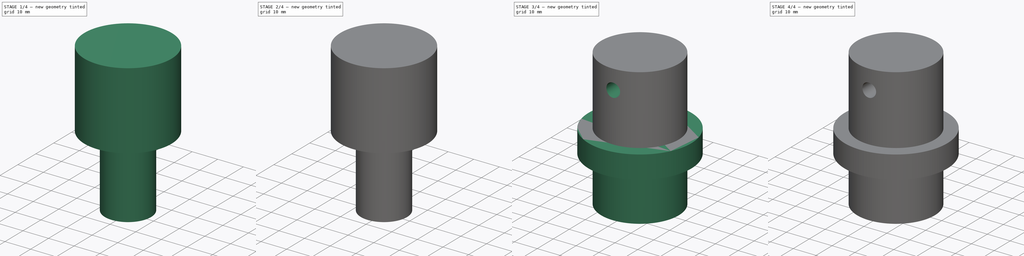
[diagram: build sequence overview — one tinted view per stage of 4, left to right]
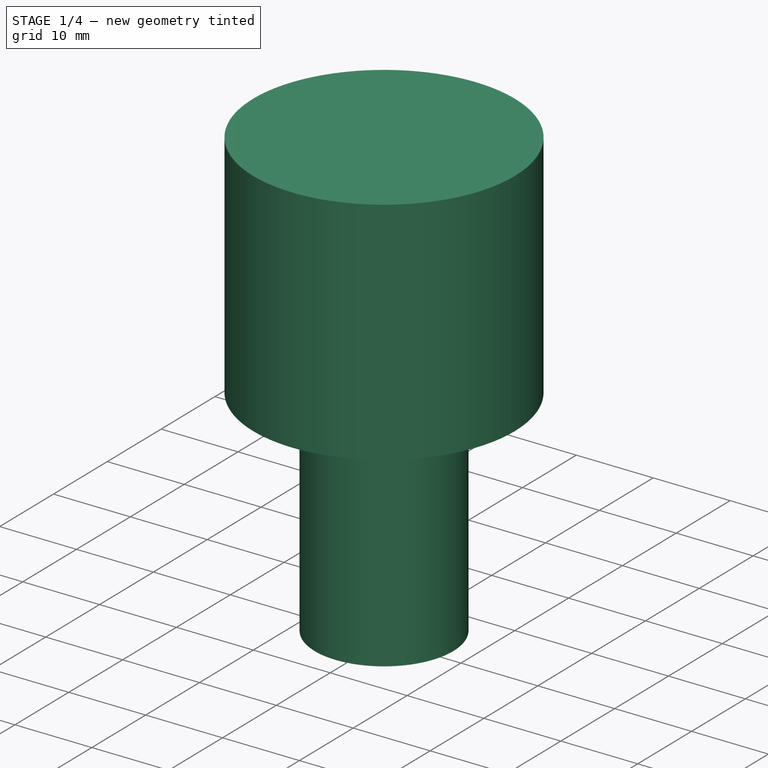
[diagram: stage 1 of 4 — iso view after this stage's code; geometry added in this stage tinted green]
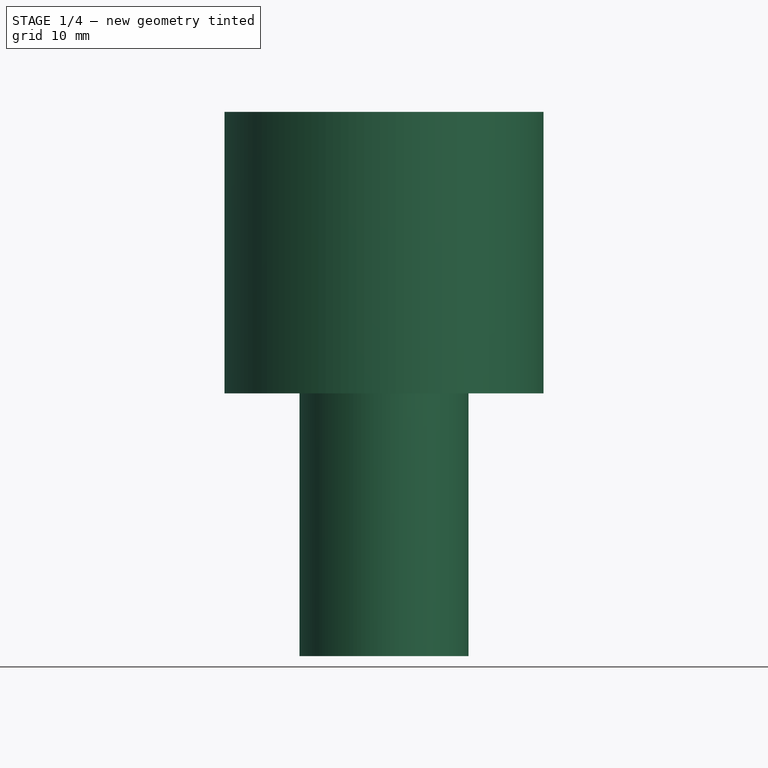
[diagram: stage 1 of 4 — front view after this stage's code; geometry added in this stage tinted green]
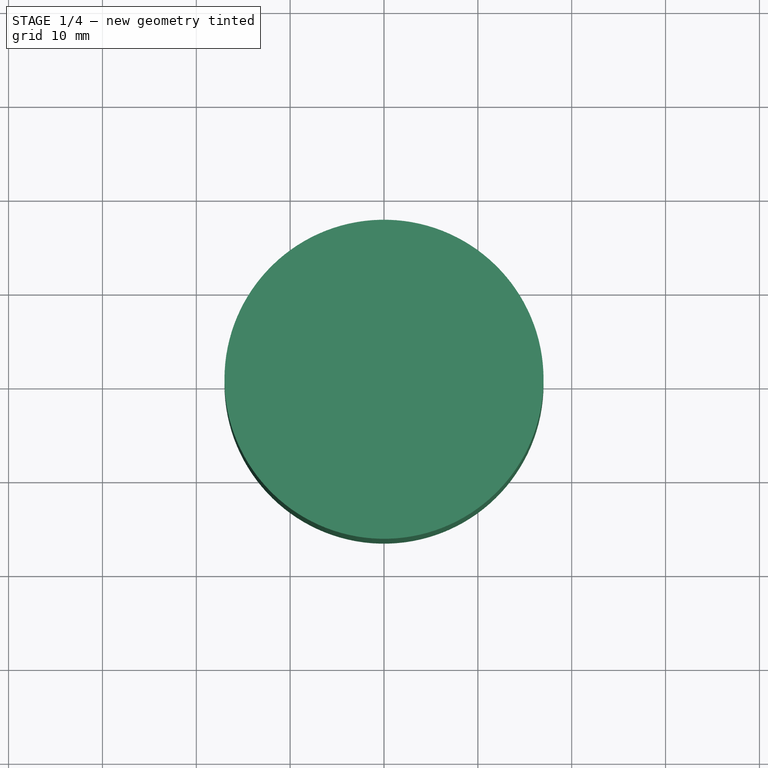
[diagram: stage 1 of 4 — top view after this stage's code; geometry added in this stage tinted green]
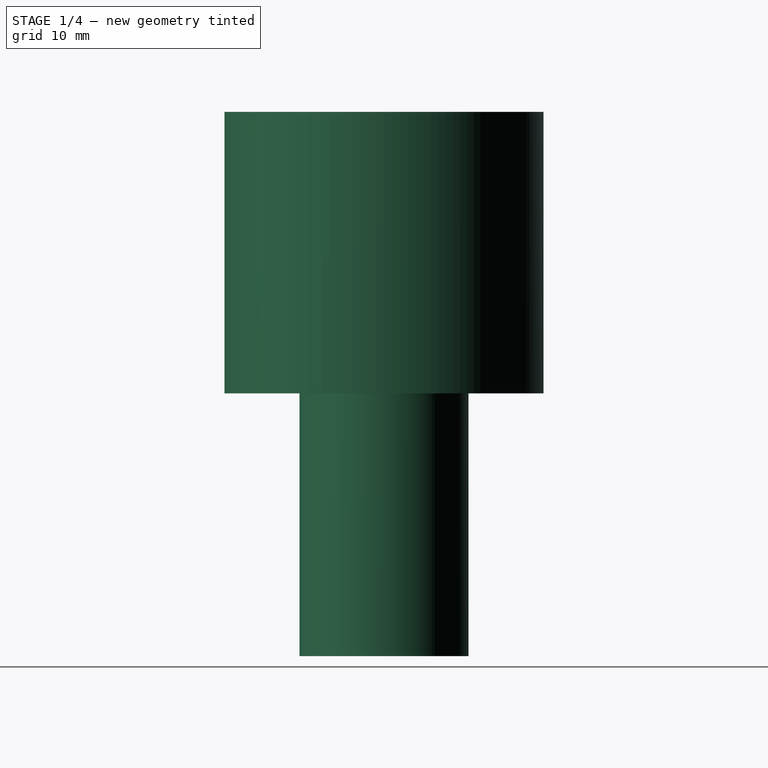
[diagram: stage 1 of 4 — right view after this stage's code; geometry added in this stage tinted green]
FCSTD DOCUMENT  (FreeCAD 0.17R10661 (Git))
Label: long_facer_reamer
License: All rights reserved
LicenseURL: http://en.wikipedia.org/wiki/All_rights_reserved
objects: Sketcher::SketchObject×9, PartDesign::Pad×5, PartDesign::Body×4, PartDesign::Pocket×3, Spreadsheet::Sheet×1, PartDesign::Mirrored×1, Part::Mirroring×1
note: 31 computed .brp shape members not serialized (recipe doc carries the construction recipe); baked Part::Feature solids carry a one-line shape summary decoded from their .brp

FEATURE [Spreadsheet::Sheet] Spreadsheet  label="design_params"
  cells = A1=cutter_id; B1(cutter_id)==18mm; C1=pins_c2c; D1(pins_c2c)==B5 - B4 - 4mm; A2=headtube_length; B2(headtube_length)==800mm; A3=headtube_id; B3(headtube_id)==34mm; A4=pin_diam; B4(pin_diam)==4mm; A5=holder_od; B5(holder_od)==34mm; A6=cutter_stack; B6(cutter_stack)==30mm
FEATURE [Sketcher::SketchObject] Sketch
  MapMode = 5
  Support = -> [XY_Plane]
  expr: Constraints[1] = design_params.holder_od / 2
  sketch-geometry (1):
    g0: Circle CenterX=0 CenterY=0 CenterZ=0 NormalX=0 NormalY=0 NormalZ=1 Radius=17
  constraints (2):
    c: Coincident(g-1,g0)
    c: Radius(g0) = 17
FEATURE [PartDesign::Pad] Pad
  Length = 30
  Length2 = 30
  Profile = -> Sketch
  Type = 0
FEATURE [Sketcher::SketchObject] Sketch001
  MapMode = 5
  Placement = pos=(0,0,0) rot=(1,0,0;3.14159rad)
  Support = -> [Pad]
  expr: Constraints[1] = design_params.cutter_id / 2
  sketch-geometry (1):
    g0: Circle CenterX=0 CenterY=0 CenterZ=0 NormalX=0 NormalY=0 NormalZ=1 Radius=9
  constraints (2):
    c: Coincident(g0,g-1)
    c: Radius(g0) = 9
FEATURE [PartDesign::Pad] Pad001
  BaseFeature = -> Pad
  Length = 28
  Length2 = 100
  Profile = -> Sketch001
  Type = 0
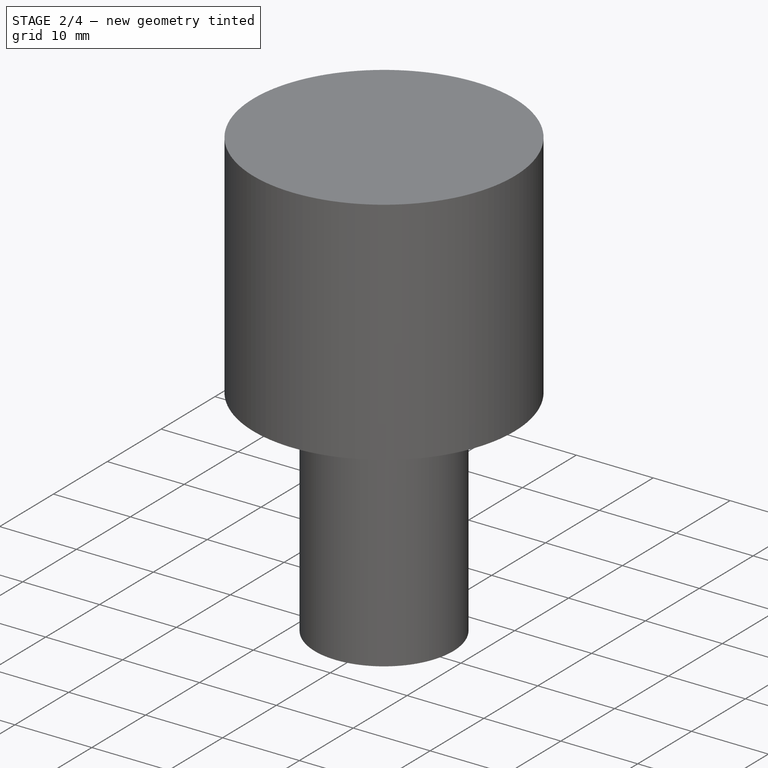
[diagram: stage 2 of 4 — iso view after this stage's code; geometry added in this stage tinted green]
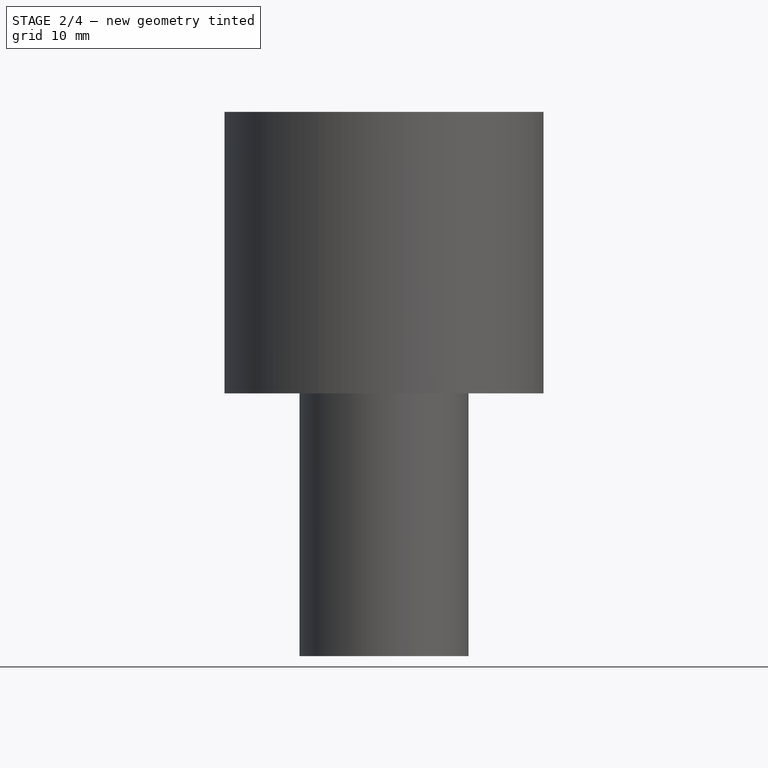
[diagram: stage 2 of 4 — front view after this stage's code; geometry added in this stage tinted green]
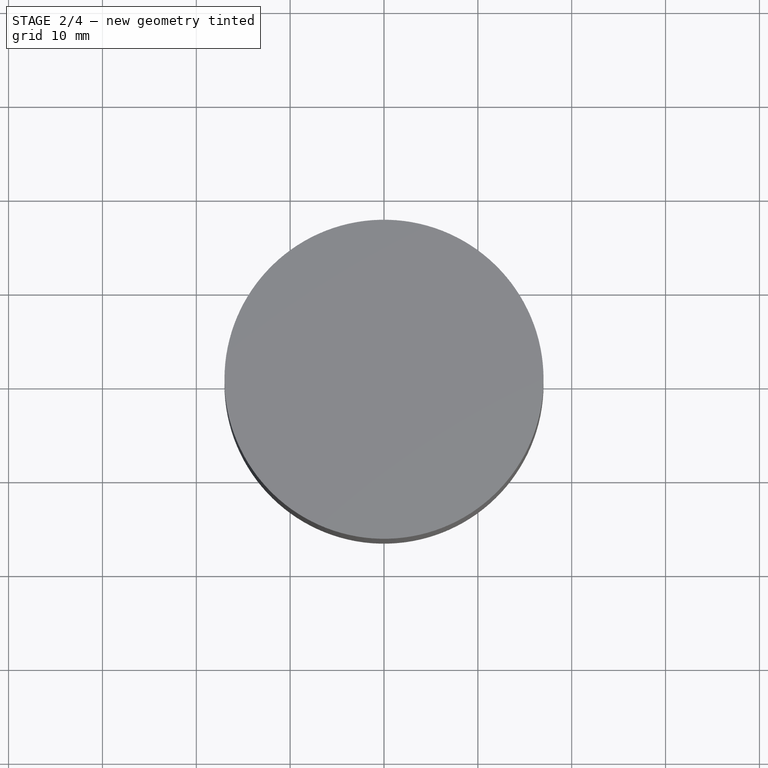
[diagram: stage 2 of 4 — top view after this stage's code; geometry added in this stage tinted green]
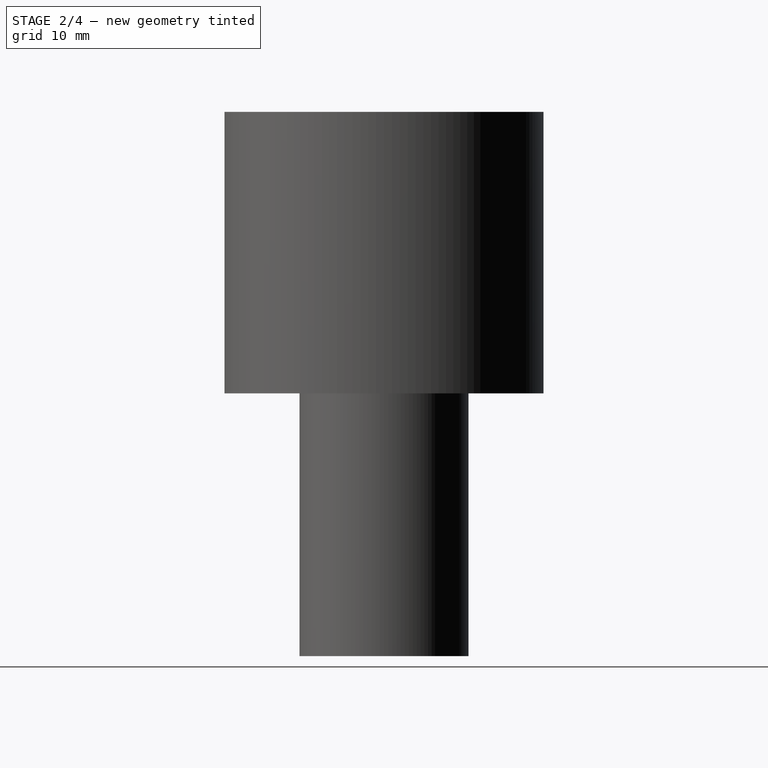
[diagram: stage 2 of 4 — right view after this stage's code; geometry added in this stage tinted green]
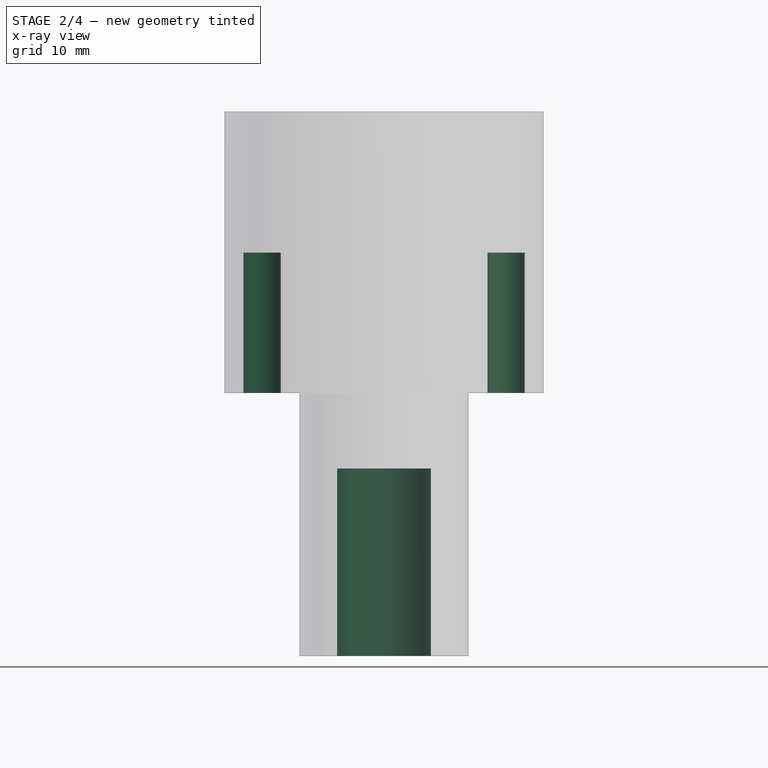
[diagram: stage 2 of 4 — x-ray composite at the front view; earlier geometry ghosted, this stage's added geometry solid]
FEATURE [Sketcher::SketchObject] Sketch002
  MapMode = 5
  Placement = pos=(0,0,0) rot=(1,0,0;3.14159rad)
  Support = -> [Pad001]
  expr: Constraints[1] = design_params.pin_diam / 2
  expr: Constraints[2] = design_params.pins_c2c / 2
  sketch-geometry (1):
    g0: Circle CenterX=13 CenterY=0 CenterZ=0 NormalX=0 NormalY=0 NormalZ=1 Radius=2
  constraints (3):
    c: PointOnObject(g0,g-1)
    c: Radius(g0) = 2
    c: DistanceX(g0) = 13
FEATURE [PartDesign::Pocket] Pocket
  BaseFeature = -> Pad001
  Length = 15
  Profile = -> Sketch002
  Type = 0
FEATURE [PartDesign::Mirrored] Mirrored
  BaseFeature = -> Pocket
  MirrorPlane = -> Sketch002 [V_Axis]
  Originals = -> [Pocket]
FEATURE [PartDesign::Body] Body002
  Group = -> [Sketch004,Pad003,Sketch005,Pad004]
  Origin = -> Body002Origin
  Tip = -> Pad004
FEATURE [Sketcher::SketchObject] Sketch006
  MapMode = 5
  Placement = pos=(0,0,-28) rot=(1,0,0;3.14159rad)
  Support = -> [Mirrored]
  sketch-geometry (1):
    g0: Circle CenterX=0 CenterY=0 CenterZ=0 NormalX=0 NormalY=0 NormalZ=1 Radius=5
  constraints (2):
    c: Coincident(g0,g-1)
    c: Radius(g0) = 5
FEATURE [PartDesign::Pocket] Pocket001
  BaseFeature = -> Mirrored
  Length = 20
  Profile = -> Sketch006
  Type = 0
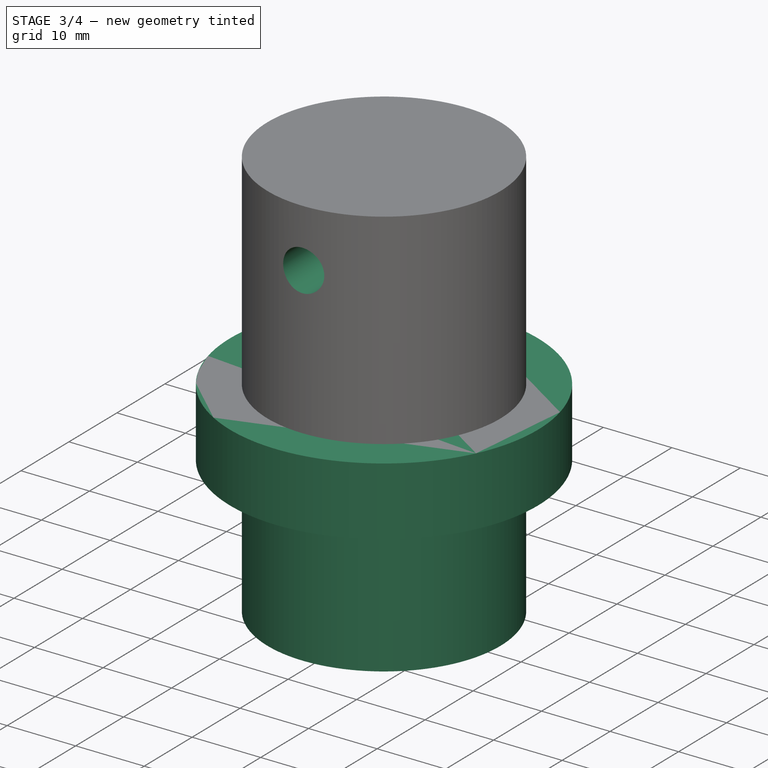
[diagram: stage 3 of 4 — iso view after this stage's code; geometry added in this stage tinted green]
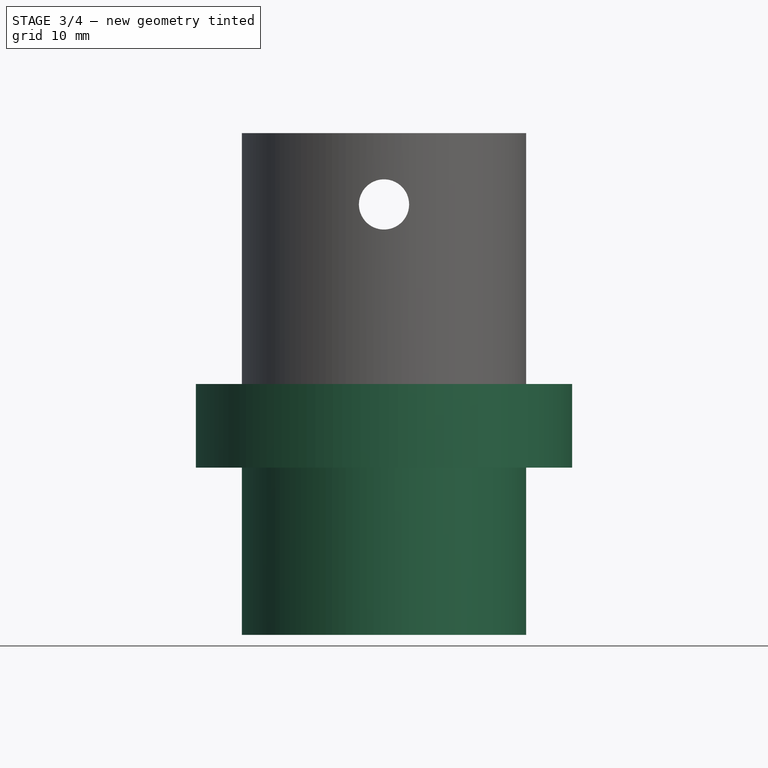
[diagram: stage 3 of 4 — front view after this stage's code; geometry added in this stage tinted green]
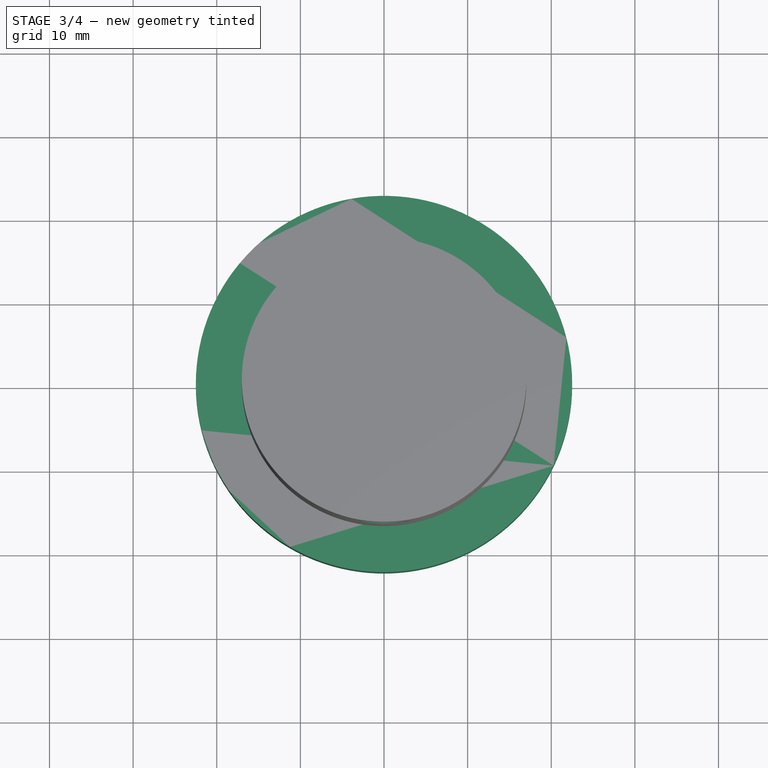
[diagram: stage 3 of 4 — top view after this stage's code; geometry added in this stage tinted green]
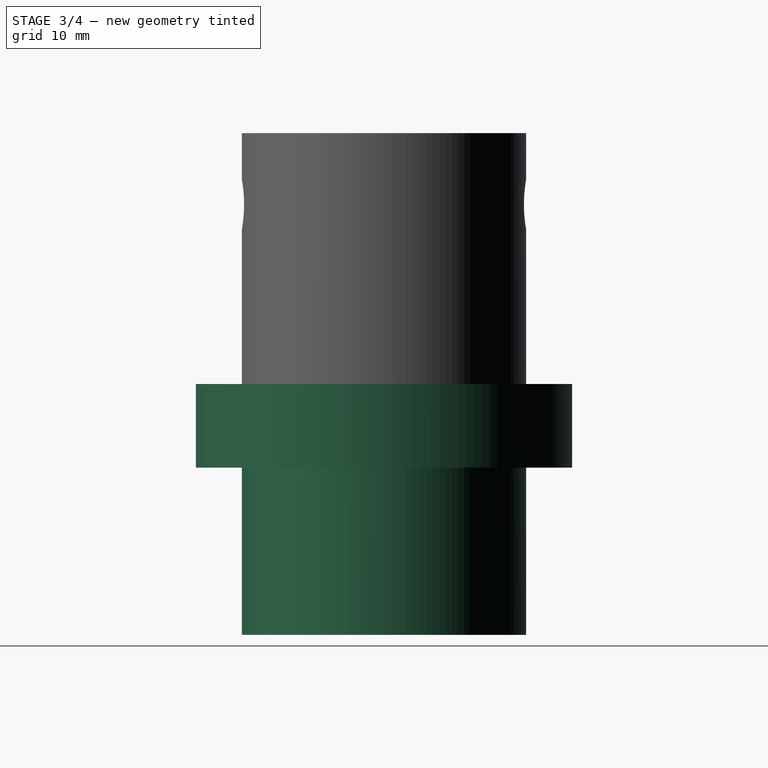
[diagram: stage 3 of 4 — right view after this stage's code; geometry added in this stage tinted green]
FEATURE [Sketcher::SketchObject] Sketch004
  MapMode = 5
  Support = -> [XY_Plane002]
  sketch-geometry (1):
    g0: Circle CenterX=0 CenterY=0 CenterZ=0 NormalX=0 NormalY=0 NormalZ=1 Radius=22.5
  constraints (2):
    c: Coincident(g0,g-1)
    c: Radius(g0) = 22.5
FEATURE [PartDesign::Pad] Pad003
  Length = 10
  Length2 = 100
  Profile = -> Sketch004
  Reversed = true
  Type = 0
FEATURE [PartDesign::Body] Body003
  Origin = -> Body003Origin
FEATURE [Sketcher::SketchObject] Sketch005
  MapMode = 5
  Placement = pos=(0,0,-10) rot=(1,0,0;3.14159rad)
  Support = -> [Pad003]
  sketch-geometry (1):
    g0: Circle CenterX=0 CenterY=0 CenterZ=0 NormalX=0 NormalY=0 NormalZ=1 Radius=17
  constraints (2):
    c: Coincident(g0,g-1)
    c: Radius(g0) = 17
FEATURE [PartDesign::Pad] Pad004
  BaseFeature = -> Pad003
  Length = 20
  Length2 = 100
  Profile = -> Sketch005
  Type = 0
FEATURE [Sketcher::SketchObject] Sketch007
  MapMode = 5
  Placement = pos=(0,0,0) rot=(1,0,0;1.5708rad)
  Support = -> [XZ_Plane]
  sketch-geometry (1):
    g0: Circle CenterX=0 CenterY=21.471 CenterZ=0 NormalX=0 NormalY=0 NormalZ=1 Radius=3
  constraints (2):
    c: PointOnObject(g0,g-2)
    c: Radius(g0) = 3
FEATURE [PartDesign::Pocket] Pocket002
  BaseFeature = -> Pocket001
  Length = 5
  Midplane = true
  Profile = -> Sketch007
  Type = 1
FEATURE [PartDesign::Body] Body
  Group = -> [Sketch,Pad,Sketch001,Pad001,Sketch002,Pocket,Mirrored,Sketch006,Pocket001,Sketch007,Pocket002]
  Origin = -> BodyOrigin
  Tip = -> Pocket002
FEATURE [Sketcher::SketchObject] Sketch008
  sketch-geometry (14):
    g0: LineSegment StartX=1 StartY=5.55625 StartZ=0 EndX=20 EndY=5.55625 EndZ=0
    g1: LineSegment StartX=20 StartY=5.55625 StartZ=0 EndX=20 EndY=4.425 EndZ=0
    g2: LineSegment StartX=20 StartY=4.425 StartZ=0 EndX=25 EndY=4.425 EndZ=0
    g3: LineSegment StartX=25 StartY=4.425 StartZ=0 EndX=25 EndY=7.9375 EndZ=0
    g4: LineSegment StartX=25 StartY=7.9375 StartZ=0 EndX=145 EndY=7.9375 EndZ=0
    g5: LineSegment StartX=1 StartY=-5.55625 StartZ=0 EndX=20 EndY=-5.55625 EndZ=0
    g6: LineSegment StartX=20 StartY=-5.55625 StartZ=0 EndX=20 EndY=-4.425 EndZ=0
    g7: LineSegment StartX=20 StartY=-4.425 StartZ=0 EndX=25 EndY=-4.425 EndZ=0
    g8: LineSegment StartX=25 StartY=-4.425 StartZ=0 EndX=25 EndY=-7.9375 EndZ=0
    g9: LineSegment StartX=25 StartY=-7.9375 StartZ=0 EndX=145 EndY=-7.9375 EndZ=0
    g10: LineSegment StartX=0 StartY=-4.55625 StartZ=0 EndX=0 EndY=4.55625 EndZ=0
    g11: LineSegment StartX=145 StartY=-7.9375 StartZ=0 EndX=145 EndY=7.9375 EndZ=0
    g12: LineSegment StartX=0 StartY=4.55625 StartZ=0 EndX=1 EndY=5.55625 EndZ=0
    g13: LineSegment StartX=1 StartY=-5.55625 StartZ=0 EndX=0 EndY=-4.55625 EndZ=0
  constraints (40):
    c: Horizontal(g0)
    c: Coincident(g1,g0)
    c: Vertical(g1)
    c: Coincident(g2,g1)
    c: Horizontal(g2)
    c: Coincident(g3,g2)
    c: Vertical(g3)
    c: Coincident(g4,g3)
    c: Horizontal(g4)
    c: Distance(g4) = 120
    c: Horizontal(g5)
    c: Coincident(g6,g5)
    c: Vertical(g6)
    c: Coincident(g7,g6)
    c: Horizontal(g7)
    c: Coincident(g8,g7)
    c: Vertical(g8)
    c: Coincident(g9,g8)
    c: Horizontal(g9)
    c: Vertical(g10)
    c: DistanceX(g2,g2) = 5
    c: DistanceY(g9,g4) = 15.875
    c: Symmetric(g3,g8,g-1)
    c: Symmetric(g7,g2,g-1)
    c: DistanceX(g1,g6) = 0
    c: Coincident(g11,g9)
    c: Coincident(g11,g4)
    c: Vertical(g11)
    c: DistanceY(g5,g0) = 11.1125
    c: DistanceY(g7,g2) = 8.85
    c: Coincident(g12,g10)
    c: Coincident(g12,g0)
    c: Coincident(g13,g5)
    c: Coincident(g13,g10)
    c: Symmetric(g10,g10,g-1)
    c: Symmetric(g5,g0,g-1)
    c: Angle(g12) = 0.785398
    c: PointOnObject(g-1,g10)
    c: DistanceX(g-1,g0) = 1
    c: DistanceX(g-1,g0) = 20
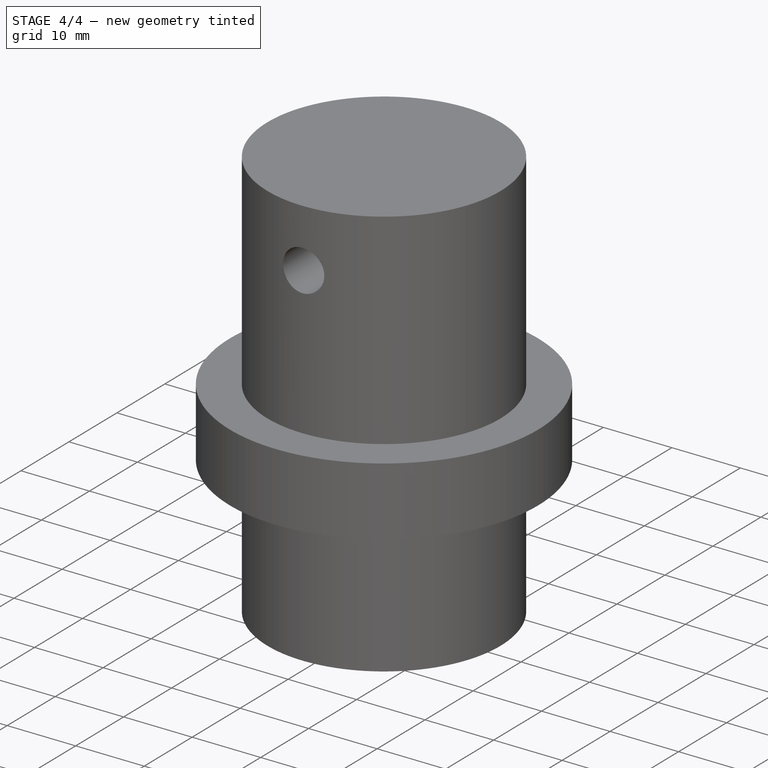
[diagram: stage 4 of 4 — iso view after this stage's code; geometry added in this stage tinted green]
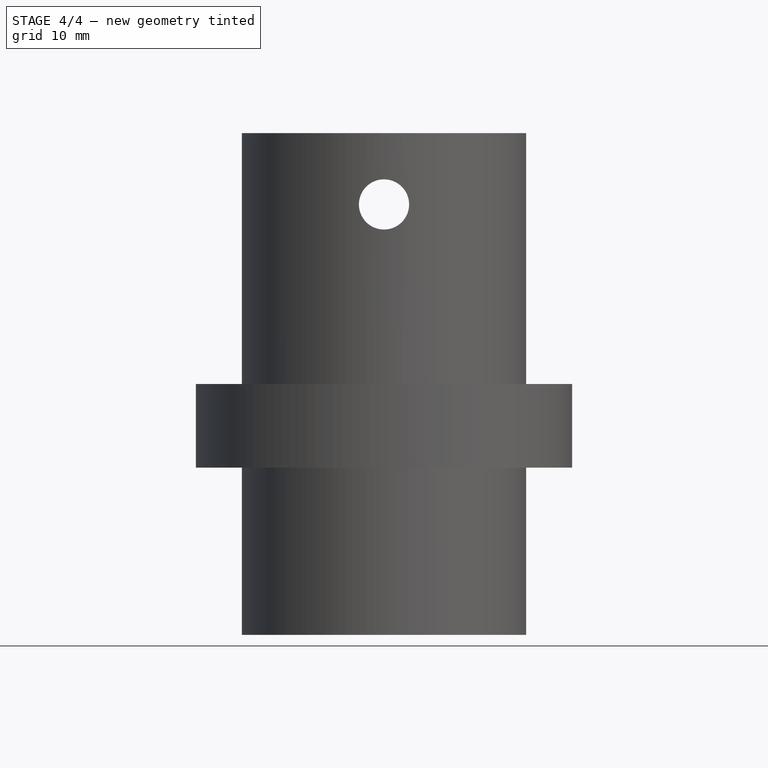
[diagram: stage 4 of 4 — front view after this stage's code; geometry added in this stage tinted green]
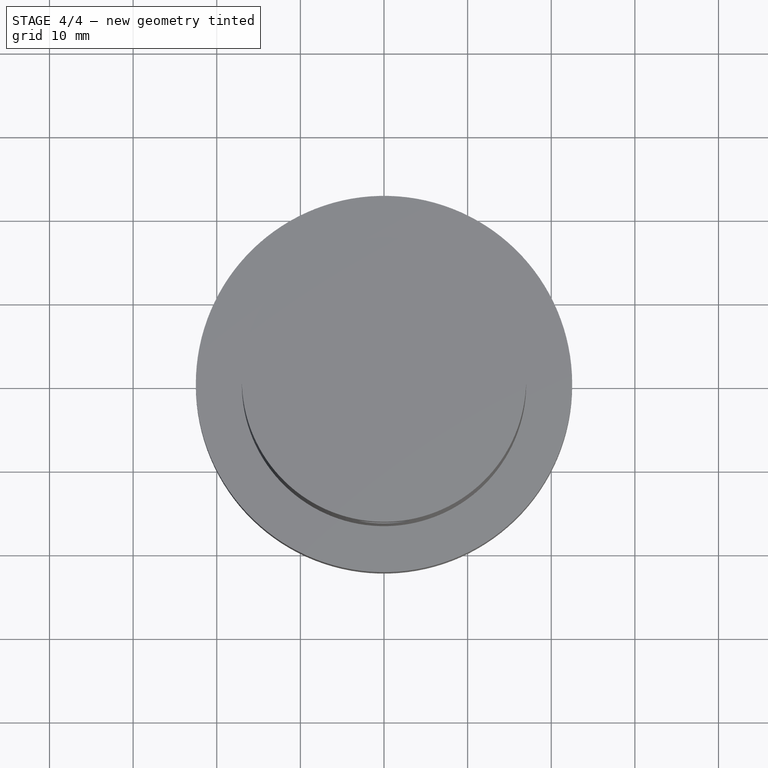
[diagram: stage 4 of 4 — top view after this stage's code; geometry added in this stage tinted green]
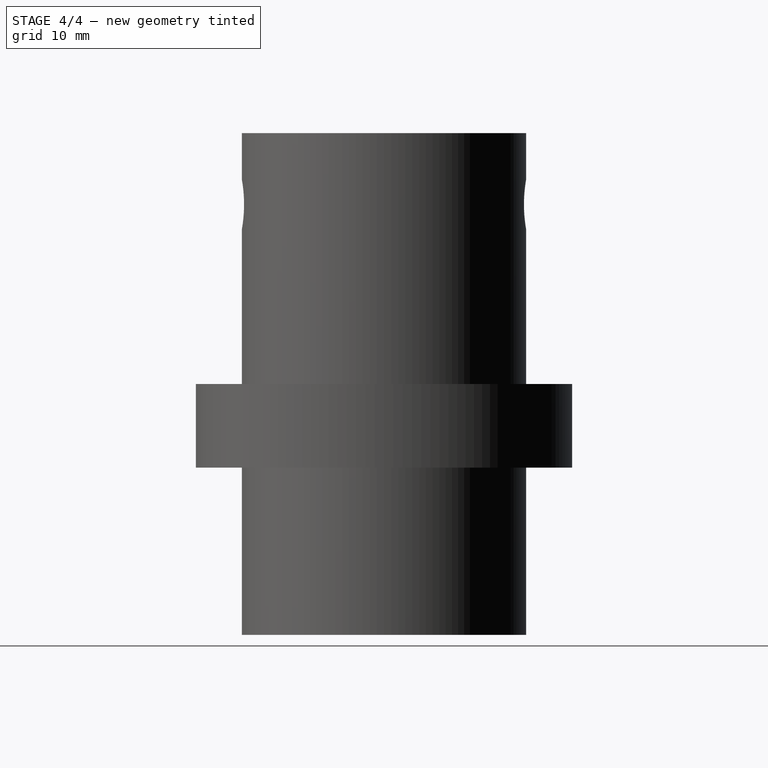
[diagram: stage 4 of 4 — right view after this stage's code; geometry added in this stage tinted green]
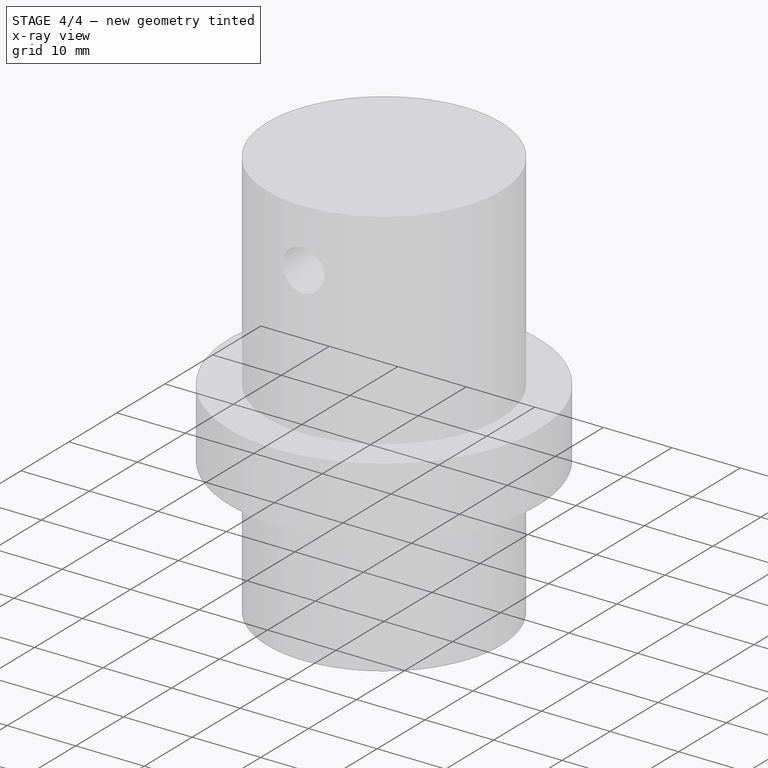
[diagram: stage 4 of 4 — x-ray composite at the iso view; earlier geometry ghosted, this stage's added geometry solid]
FEATURE [Sketcher::SketchObject] Sketch003
  MapMode = 5
  Support = -> [XY_Plane001]
  expr: Constraints[2] = design_params.pin_diam / 2
  expr: Constraints[1] = design_params.pins_c2c / 2
  sketch-geometry (1):
    g0: Circle CenterX=13 CenterY=0 CenterZ=0 NormalX=0 NormalY=0 NormalZ=1 Radius=2
  constraints (3):
    c: PointOnObject(g0,g-1)
    c: DistanceX(g0) = 13
    c: Radius(g0) = 2
FEATURE [PartDesign::Pad] Pad002
  Length = 15
  Length2 = 5
  Profile = -> Sketch003
  Type = 4
FEATURE [PartDesign::Body] Body001
  Group = -> [Sketch003,Pad002]
  Origin = -> Body001Origin
  Tip = -> Pad002
FEATURE [Part::Mirroring] Part__Mirroring  label="Body001 (Mirror #1)"
  Base = (0,0,0)
  Normal = (1,0,0)
  Source = -> Body001
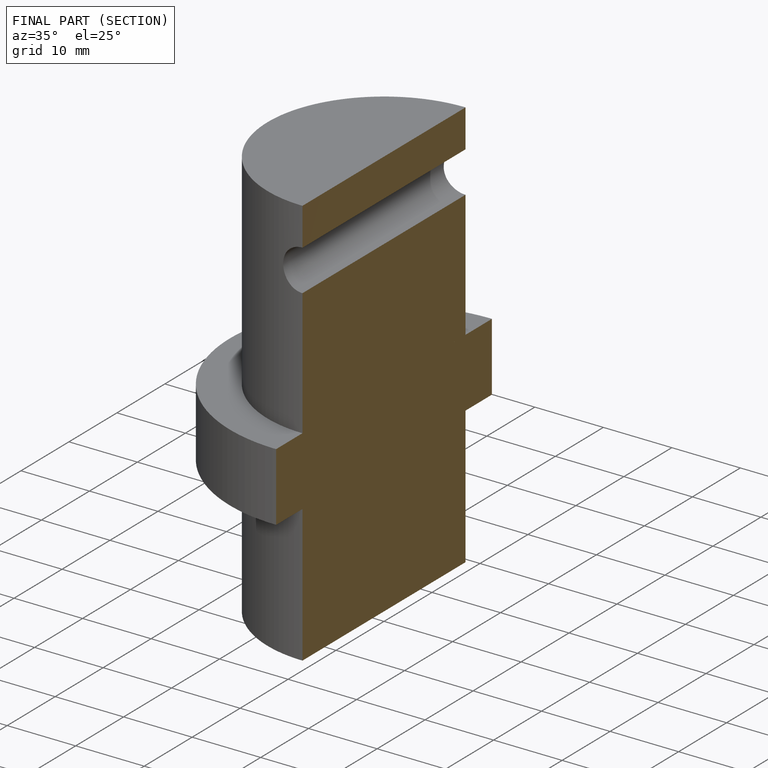
[diagram: finished part — half-section view (interior)]
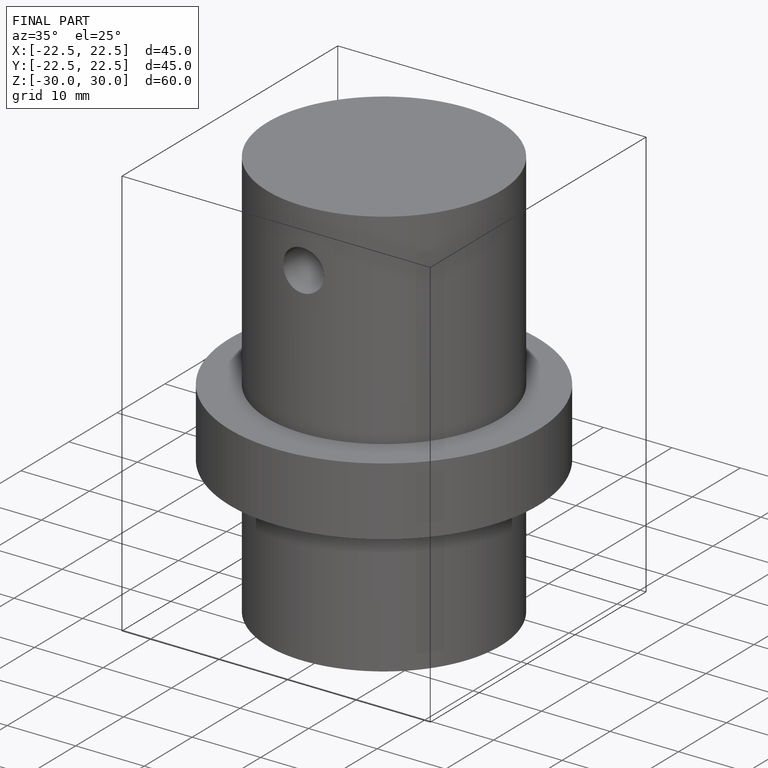
[diagram: finished part — iso view with bounding-box wireframe]
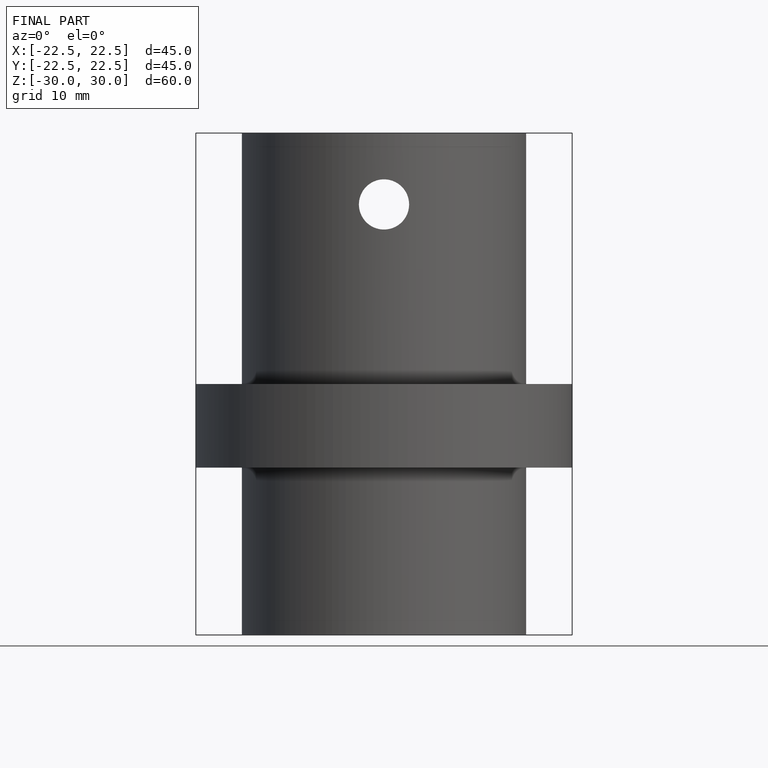
[diagram: finished part — front view with bounding-box wireframe]
